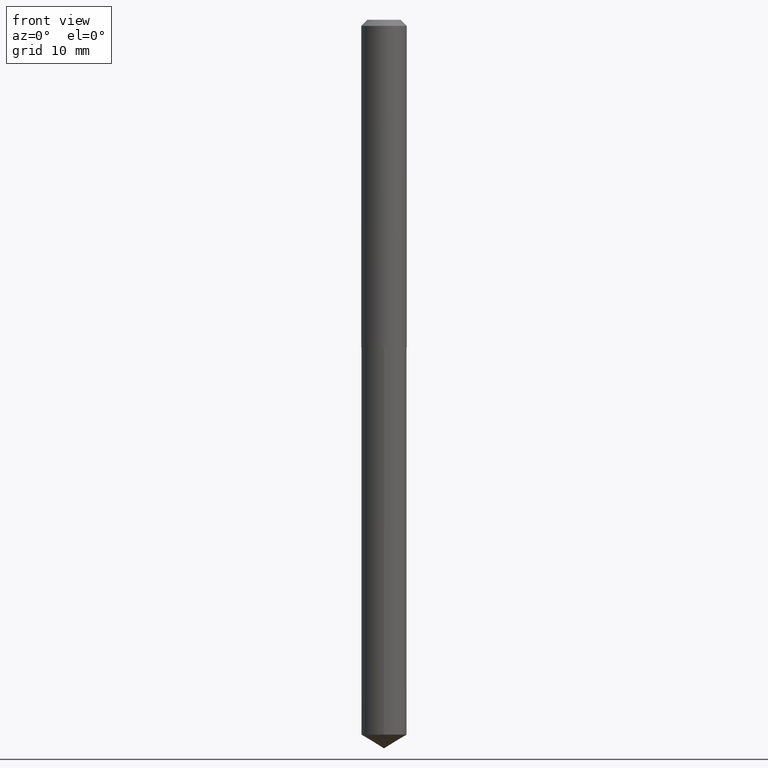
[diagram: clean part render]
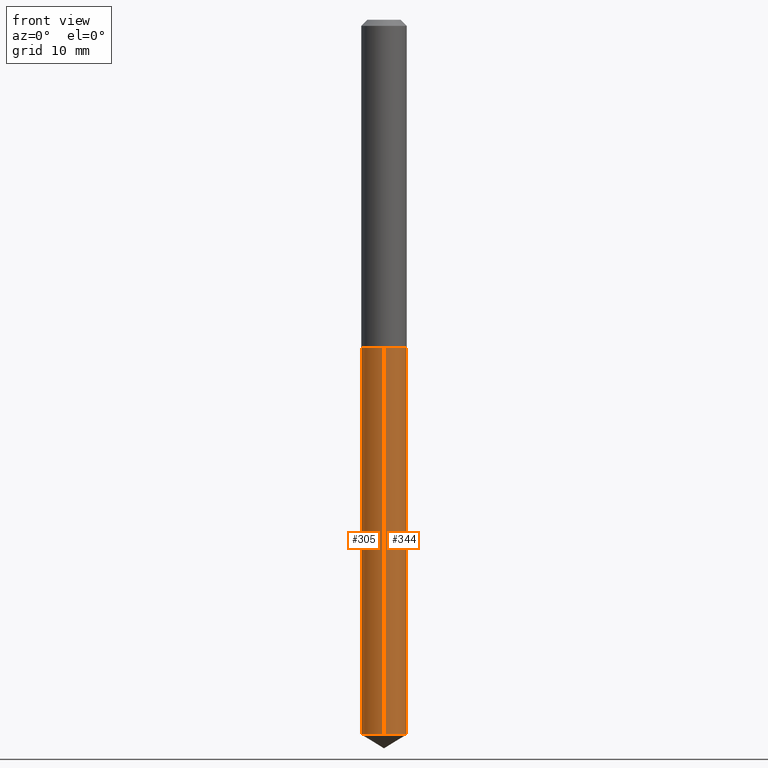
[diagram: same view with one multi-face feature highlighted, each face labeled with its STEP entity id]
A machine part, front view. The highlighted faces form ONE feature: a constant-radius fillet chain: 2 tangent blend faces with common blend radius 2.8994 mm. The faces share edges in the B-rep.
Their STEP definitions:
[1] entity #305 (Cylinder):
#7 = EDGE_CURVE ( 'NONE', #240, #353, #32, .T. ) ;
#15 = FACE_OUTER_BOUND ( 'NONE', #174, .T. ) ;
#22 = ORIENTED_EDGE ( 'NONE', *, *, #40, .T. ) ;
#27 = CARTESIAN_POINT ( 'NONE',  ( -7.971051896578468938E-16, -0.1141500000000057469, -1.645599999999999508 ) ) ;
#31 = DIRECTION ( 'NONE',  ( -6.982962677686264344E-15, -1.000000000000000000, 4.786417860121354983E-15 ) ) ;
#32 = LINE ( 'NONE', #27, #216 ) ;
#38 = DIRECTION ( 'NONE',  ( -6.982962677686264344E-15, -1.000000000000000000, 2.393208930060677491E-15 ) ) ;
#40 = EDGE_CURVE ( 'NONE', #47, #240, #97, .T. ) ;
#47 = VERTEX_POINT ( 'NONE', #365 ) ;
#60 = DIRECTION ( 'NONE',  ( -2.445471081714961586E-29, 3.491478080154921275E-15, 1.000000000000000000 ) ) ;
#69 = CYLINDRICAL_SURFACE ( 'NONE', #250, 0.1141500000000000015 ) ;
#76 = DIRECTION ( 'NONE',  ( -2.445471081714961586E-29, 3.491478080154921275E-15, 1.000000000000000000 ) ) ;
#94 = EDGE_CURVE ( 'NONE', #47, #160, #275, .T. ) ;
#97 = CIRCLE ( 'NONE', #200, 0.1141500000000000015 ) ;
#114 = CARTESIAN_POINT ( 'NONE',  ( -7.971051896578468938E-16, -0.1141500000000057469, -1.645599999999999508 ) ) ;
#125 = DIRECTION ( 'NONE',  ( -2.445471081714961586E-29, 3.491478080154921275E-15, 1.000000000000000000 ) ) ;
#131 = DIRECTION ( 'NONE',  ( -6.982962677686264344E-15, -1.000000000000000000, 2.393208930060677491E-15 ) ) ;
#133 = CARTESIAN_POINT ( 'NONE',  ( 4.024263467458259965E-29, -5.745581691200278949E-15, -1.645599999999999730 ) ) ;
#151 = CARTESIAN_POINT ( 'NONE',  ( 8.110845328701945059E-16, 0.1141499999999942422, -1.645599999999999952 ) ) ;
#155 = CIRCLE ( 'NONE', #338, 0.1141500000000000015 ) ;
#160 = VERTEX_POINT ( 'NONE', #218 ) ;
#174 = EDGE_LOOP ( 'NONE', ( #179, #22, #296, #380 ) ) ;
#179 = ORIENTED_EDGE ( 'NONE', *, *, #94, .F. ) ;
#186 = CARTESIAN_POINT ( 'NONE',  ( 8.786113517340136323E-29, -1.254422886984030154E-14, -3.592811760338004756 ) ) ;
#190 = DIRECTION ( 'NONE',  ( -2.445471081714961586E-29, 3.491478080154921275E-15, 1.000000000000000000 ) ) ;
#200 = AXIS2_PLACEMENT_3D ( 'NONE', #186, #210, #31 ) ;
#210 = DIRECTION ( 'NONE',  ( -2.445471081714961586E-29, 3.491478080154921275E-15, 1.000000000000000000 ) ) ;
#216 = VECTOR ( 'NONE', #125, 39.37007874015748143 ) ;
#218 = CARTESIAN_POINT ( 'NONE',  ( 8.110845328702424292E-16, 0.1141499999999942422, -1.645599999999999952 ) ) ;
#222 = EDGE_CURVE ( 'NONE', #160, #353, #155, .T. ) ;
#240 = VERTEX_POINT ( 'NONE', #374 ) ;
#250 = AXIS2_PLACEMENT_3D ( 'NONE', #375, #76, #131 ) ;
#275 = LINE ( 'NONE', #151, #314 ) ;
#296 = ORIENTED_EDGE ( 'NONE', *, *, #7, .T. ) ;
#305 = ADVANCED_FACE ( 'NONE', ( #15 ), #69, .T. ) ;
#314 = VECTOR ( 'NONE', #60, 39.37007874015748143 ) ;
#338 = AXIS2_PLACEMENT_3D ( 'NONE', #133, #190, #38 ) ;
#353 = VERTEX_POINT ( 'NONE', #114 ) ;
#365 = CARTESIAN_POINT ( 'NONE',  ( 8.110845328702420348E-16, 0.1141499999999874421, -3.592811760338005200 ) ) ;
#374 = CARTESIAN_POINT ( 'NONE',  ( -7.971051896577994635E-16, -0.1141500000000125470, -3.592811760338004312 ) ) ;
#375 = CARTESIAN_POINT ( 'NONE',  ( 4.024263467458259965E-29, -5.745581691200278949E-15, -1.645599999999999730 ) ) ;
#380 = ORIENTED_EDGE ( 'NONE', *, *, #222, .F. ) ;
[2] entity #344 (Cylinder):
#3 = CIRCLE ( 'NONE', #245, 0.1141500000000000015 ) ;
#7 = EDGE_CURVE ( 'NONE', #240, #353, #32, .T. ) ;
#11 = CIRCLE ( 'NONE', #121, 0.1141500000000000015 ) ;
#14 = DIRECTION ( 'NONE',  ( -6.982962677686264344E-15, -1.000000000000000000, 2.393208930060677491E-15 ) ) ;
#27 = CARTESIAN_POINT ( 'NONE',  ( -7.971051896578468938E-16, -0.1141500000000057469, -1.645599999999999508 ) ) ;
#32 = LINE ( 'NONE', #27, #216 ) ;
#41 = CARTESIAN_POINT ( 'NONE',  ( 4.024263467458259965E-29, -5.745581691200278949E-15, -1.645599999999999730 ) ) ;
#47 = VERTEX_POINT ( 'NONE', #365 ) ;
#60 = DIRECTION ( 'NONE',  ( -2.445471081714961586E-29, 3.491478080154921275E-15, 1.000000000000000000 ) ) ;
#71 = DIRECTION ( 'NONE',  ( -6.982962677686264344E-15, -1.000000000000000000, 2.393208930060677491E-15 ) ) ;
#72 = FACE_OUTER_BOUND ( 'NONE', #115, .T. ) ;
#94 = EDGE_CURVE ( 'NONE', #47, #160, #275, .T. ) ;
#113 = ORIENTED_EDGE ( 'NONE', *, *, #7, .F. ) ;
#114 = CARTESIAN_POINT ( 'NONE',  ( -7.971051896578468938E-16, -0.1141500000000057469, -1.645599999999999508 ) ) ;
#115 = EDGE_LOOP ( 'NONE', ( #142, #303, #232, #113 ) ) ;
#121 = AXIS2_PLACEMENT_3D ( 'NONE', #217, #339, #215 ) ;
#125 = DIRECTION ( 'NONE',  ( -2.445471081714961586E-29, 3.491478080154921275E-15, 1.000000000000000000 ) ) ;
#142 = ORIENTED_EDGE ( 'NONE', *, *, #150, .T. ) ;
#150 = EDGE_CURVE ( 'NONE', #240, #47, #11, .T. ) ;
#151 = CARTESIAN_POINT ( 'NONE',  ( 8.110845328701945059E-16, 0.1141499999999942422, -1.645599999999999952 ) ) ;
#160 = VERTEX_POINT ( 'NONE', #218 ) ;
#165 = DIRECTION ( 'NONE',  ( -2.445471081714961586E-29, 3.491478080154921275E-15, 1.000000000000000000 ) ) ;
#170 = AXIS2_PLACEMENT_3D ( 'NONE', #41, #165, #14 ) ;
#192 = CYLINDRICAL_SURFACE ( 'NONE', #170, 0.1141500000000000015 ) ;
#215 = DIRECTION ( 'NONE',  ( -6.982962677686264344E-15, -1.000000000000000000, 4.786417860121354983E-15 ) ) ;
#216 = VECTOR ( 'NONE', #125, 39.37007874015748143 ) ;
#217 = CARTESIAN_POINT ( 'NONE',  ( 8.786113517340136323E-29, -1.254422886984030154E-14, -3.592811760338004756 ) ) ;
#218 = CARTESIAN_POINT ( 'NONE',  ( 8.110845328702424292E-16, 0.1141499999999942422, -1.645599999999999952 ) ) ;
#232 = ORIENTED_EDGE ( 'NONE', *, *, #290, .F. ) ;
#240 = VERTEX_POINT ( 'NONE', #374 ) ;
#245 = AXIS2_PLACEMENT_3D ( 'NONE', #289, #345, #71 ) ;
#275 = LINE ( 'NONE', #151, #314 ) ;
#289 = CARTESIAN_POINT ( 'NONE',  ( 4.024263467458259965E-29, -5.745581691200278949E-15, -1.645599999999999730 ) ) ;
#290 = EDGE_CURVE ( 'NONE', #353, #160, #3, .T. ) ;
#303 = ORIENTED_EDGE ( 'NONE', *, *, #94, .T. ) ;
#314 = VECTOR ( 'NONE', #60, 39.37007874015748143 ) ;
#339 = DIRECTION ( 'NONE',  ( -2.445471081714961586E-29, 3.491478080154921275E-15, 1.000000000000000000 ) ) ;
#344 = ADVANCED_FACE ( 'NONE', ( #72 ), #192, .T. ) ;
#345 = DIRECTION ( 'NONE',  ( -2.445471081714961586E-29, 3.491478080154921275E-15, 1.000000000000000000 ) ) ;
#353 = VERTEX_POINT ( 'NONE', #114 ) ;
#365 = CARTESIAN_POINT ( 'NONE',  ( 8.110845328702420348E-16, 0.1141499999999874421, -3.592811760338005200 ) ) ;
#374 = CARTESIAN_POINT ( 'NONE',  ( -7.971051896577994635E-16, -0.1141500000000125470, -3.592811760338004312 ) ) ;